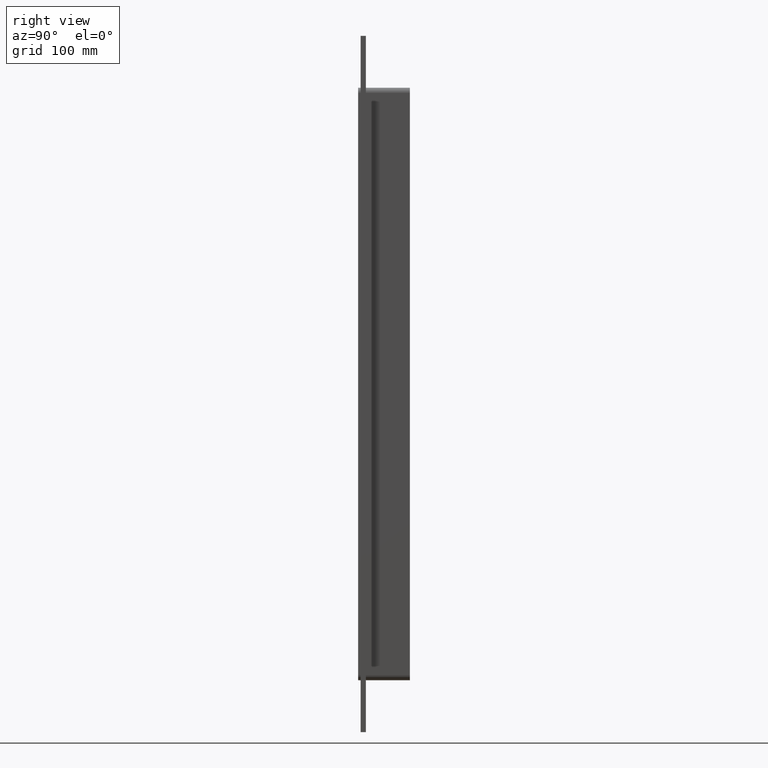
[diagram: clean part render]
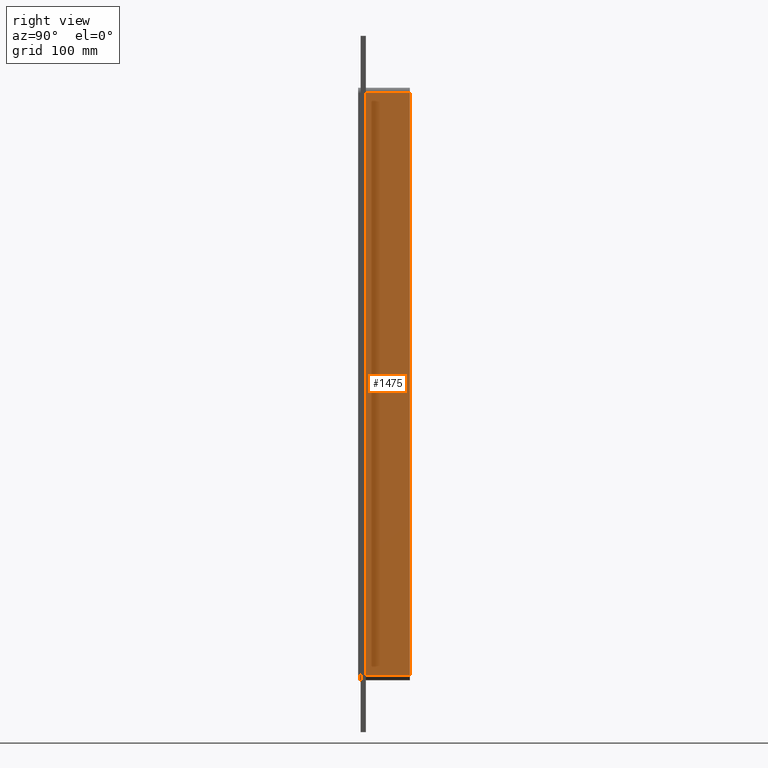
[diagram: same view with one face highlighted and labeled with its STEP entity id]
A machine part, right view. The second image highlights one B-rep face of the part: STEP entity #1475.
In plain terms, the highlighted planar face has unit normal (1, 0, 0).
Its self-contained STEP definition (entity closure, byte-faithful):
#1043=CARTESIAN_POINT('',(66.25,6.000000000000001,-337.0));
#1044=VERTEX_POINT('',#1043);
#1052=CARTESIAN_POINT('',(66.25,6.000000000000001,337.0));
#1053=VERTEX_POINT('',#1052);
#1054=CARTESIAN_POINT('',(66.25,6.000000000000001,337.0));
#1055=DIRECTION('',(0.0,0.0,-1.0));
#1056=VECTOR('',#1055,674.00000000000011);
#1057=LINE('',#1054,#1056);
#1058=EDGE_CURVE('',#1053,#1044,#1057,.T.);
#1402=CARTESIAN_POINT('',(66.25,57.0,337.0));
#1403=VERTEX_POINT('',#1402);
#1404=CARTESIAN_POINT('',(66.25,6.000000000000001,337.0));
#1405=DIRECTION('',(0.0,1.0,0.0));
#1406=VECTOR('',#1405,51.0);
#1407=LINE('',#1404,#1406);
#1408=EDGE_CURVE('',#1053,#1403,#1407,.T.);
#1452=CARTESIAN_POINT('',(66.25,0.0,343.00000000000006));
#1453=DIRECTION('',(1.0,0.0,0.0));
#1454=DIRECTION('',(0.0,0.0,-1.0));
#1455=AXIS2_PLACEMENT_3D('',#1452,#1453,#1454);
#1456=PLANE('',#1455);
#1457=ORIENTED_EDGE('',*,*,#1058,.T.);
#1458=CARTESIAN_POINT('',(66.25,57.0,-336.99999999999994));
#1459=VERTEX_POINT('',#1458);
#1460=CARTESIAN_POINT('',(66.25,57.0,-337.0));
#1461=DIRECTION('',(0.0,-1.0,0.0));
#1462=VECTOR('',#1461,51.0);
#1463=LINE('',#1460,#1462);
#1464=EDGE_CURVE('',#1459,#1044,#1463,.T.);
#1465=ORIENTED_EDGE('',*,*,#1464,.F.);
#1466=CARTESIAN_POINT('',(66.25,57.0,337.00000000000006));
#1467=DIRECTION('',(0.0,0.0,-1.0));
#1468=VECTOR('',#1467,674.0);
#1469=LINE('',#1466,#1468);
#1470=EDGE_CURVE('',#1403,#1459,#1469,.T.);
#1471=ORIENTED_EDGE('',*,*,#1470,.F.);
#1472=ORIENTED_EDGE('',*,*,#1408,.F.);
#1473=EDGE_LOOP('',(#1457,#1465,#1471,#1472));
#1474=FACE_OUTER_BOUND('',#1473,.T.);
#1475=ADVANCED_FACE('',(#1474),#1456,.T.);